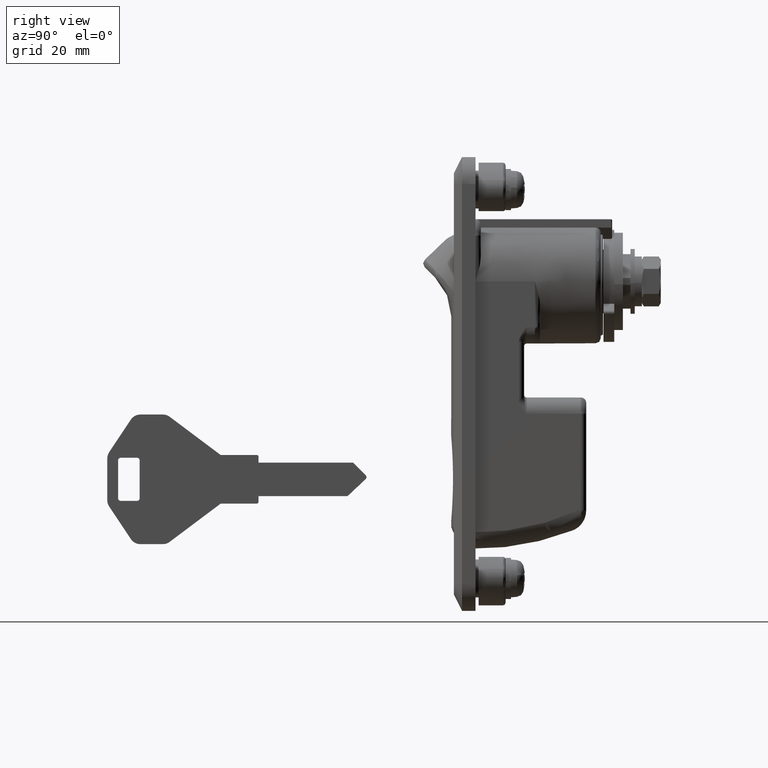
[diagram: clean part render]
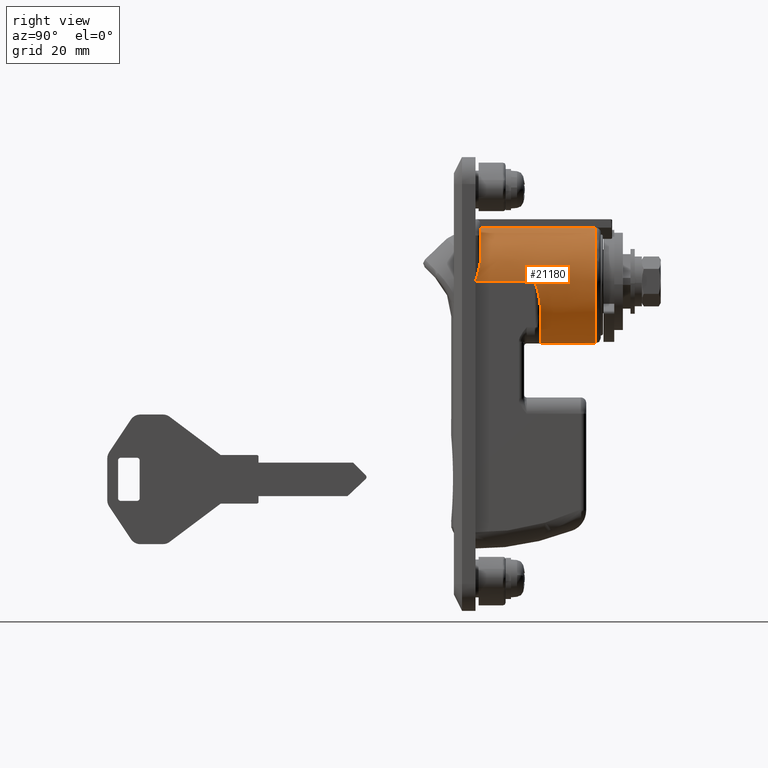
[diagram: same view with one face highlighted and labeled with its STEP entity id]
A machine part, right view. The second image highlights one B-rep face of the part: STEP entity #21180.
In plain terms, the highlighted face is a freeform B-spline surface patch.
Its self-contained STEP definition (entity closure, byte-faithful):
#16772=CARTESIAN_POINT('',(13.000000000000201,-4.690415759823431,-10.500000000000000));
#16773=VERTEX_POINT('',#16772);
#16827=CARTESIAN_POINT('',(13.000000000000201,0.0,-11.500000000000000));
#16828=VERTEX_POINT('',#16827);
#16851=CARTESIAN_POINT('',(13.000000000000201,-4.690415759823431,-10.500000000000000));
#16852=CARTESIAN_POINT('',(13.000000000000201,-3.954864853525151,-10.828575196481321));
#16853=CARTESIAN_POINT('',(13.000174019843881,-3.186823774540377,-11.078950807334220));
#16854=CARTESIAN_POINT('',(12.999990622497350,-2.398943505460169,-11.247002714370320));
#16855=CARTESIAN_POINT('',(12.999898917164630,-2.004974761726205,-11.331034770122150));
#16856=CARTESIAN_POINT('',(12.999078711932190,-1.606869004269427,-11.394307552557590));
#16857=CARTESIAN_POINT('',(12.998670436314381,-1.206260448506876,-11.436561359533149));
#16858=CARTESIAN_POINT('',(12.998466293812010,-1.005951565306311,-11.457688748762610));
#16859=CARTESIAN_POINT('',(12.998376992933810,-0.805124245083871,-11.473549798362590));
#16860=CARTESIAN_POINT('',(12.998554223316759,-0.603982209787287,-11.484128416656629));
#16861=CARTESIAN_POINT('',(12.998732986403731,-0.401100680371394,-11.494798519777730));
#16862=CARTESIAN_POINT('',(12.999283031665410,-0.203166349935086,-11.499915504493270));
#16863=CARTESIAN_POINT('',(13.000000000000201,0.0,-11.500000000000000));
#16864=B_SPLINE_CURVE_WITH_KNOTS('',3,(#16851,#16852,#16853,#16854,#16855,#16856,#16857,#16858,#16859,#16860,#16861,#16862,#16863),.UNSPECIFIED.,.F.,.U.,(4,3,3,3,4),(0.0,2.416810120694347,3.625302939285992,4.229563241183978,4.839049239640786),.UNSPECIFIED.);
#16865=EDGE_CURVE('',#16773,#16828,#16864,.T.);
#16949=CARTESIAN_POINT('',(12.000000000000201,-11.500000000000000,0.0));
#16950=VERTEX_POINT('',#16949);
#16951=CARTESIAN_POINT('',(13.000000000000201,-10.500000000000000,-4.690415759823530));
#16952=VERTEX_POINT('',#16951);
#16953=CARTESIAN_POINT('',(12.000000000000201,-11.500000000000000,5.259697E-016));
#16954=CARTESIAN_POINT('',(12.014552194124690,-11.500000000000000,-0.049349098591477));
#16955=CARTESIAN_POINT('',(12.029241510177840,-11.499679414453270,-0.099162776234242));
#16956=CARTESIAN_POINT('',(12.058470674062900,-11.498396303014880,-0.198349061517318));
#16957=CARTESIAN_POINT('',(12.102255003396570,-11.495510255699200,-0.347025155193488));
#16958=CARTESIAN_POINT('',(12.145781568037700,-11.489750047008510,-0.495413966688219));
#16959=CARTESIAN_POINT('',(12.232277269183950,-11.474411080987799,-0.791867987098536));
#16960=CARTESIAN_POINT('',(12.289201280699810,-11.459098346714111,-0.989072175396924));
#16961=CARTESIAN_POINT('',(12.455967405314830,-11.397842860974450,-1.579864825792282));
#16962=CARTESIAN_POINT('',(12.561962623284421,-11.336674203456230,-1.972601762261236));
#16963=CARTESIAN_POINT('',(12.680536602458210,-11.233388737136400,-2.463952355893630));
#16964=CARTESIAN_POINT('',(12.703542885086220,-11.211383167135780,-2.562246426042541));
#16965=CARTESIAN_POINT('',(12.747887405924100,-11.164607425251720,-2.758941881975324));
#16966=CARTESIAN_POINT('',(12.769239603087501,-11.139813386983310,-2.857420431964739));
#16967=CARTESIAN_POINT('',(12.830048187157320,-11.061589668240920,-3.151572512056969));
#16968=CARTESIAN_POINT('',(12.866392894893080,-11.004225205722030,-3.346413239475839));
#16969=CARTESIAN_POINT('',(12.928081584252309,-10.878872378748291,-3.733843825670114));
#16970=CARTESIAN_POINT('',(12.953453825861770,-10.810886542966070,-3.926430909640585));
#16971=CARTESIAN_POINT('',(12.989376017383030,-10.663889404401679,-4.309708842109340));
#16972=CARTESIAN_POINT('',(13.000000000000201,-10.584884630133500,-4.500392388327080));
#16973=CARTESIAN_POINT('',(13.000000000000201,-10.500000000000000,-4.690415759823530));
#16974=B_SPLINE_CURVE_WITH_KNOTS('',3,(#16953,#16954,#16955,#16956,#16957,#16958,#16959,#16960,#16961,#16962,#16963,#16964,#16965,#16966,#16967,#16968,#16969,#16970,#16971,#16972,#16973),.UNSPECIFIED.,.F.,.U.,(4,2,1,2,2,2,2,2,2,2,4),(0.0,0.031250000000000,0.062500000000000,0.125000000000000,0.250000000000000,0.500000000000001,0.562500000000001,0.625000000000001,0.750000000000001,0.875000000000000,1.0),.UNSPECIFIED.);
#16975=EDGE_CURVE('',#16950,#16952,#16974,.T.);
#17005=CARTESIAN_POINT('',(13.000000000000201,10.500000000000000,-4.690415759823431));
#17006=VERTEX_POINT('',#17005);
#17007=CARTESIAN_POINT('',(12.000000000000201,11.500000000000000,0.0));
#17008=VERTEX_POINT('',#17007);
#17009=CARTESIAN_POINT('',(13.000000000000201,10.500000000000000,-4.690415759823431));
#17010=CARTESIAN_POINT('',(13.000000000000201,10.584884630133489,-4.500392388326991));
#17011=CARTESIAN_POINT('',(12.989376017383030,10.663889404401710,-4.309708842109277));
#17012=CARTESIAN_POINT('',(12.953453825861761,10.810886542966090,-3.926430909640542));
#17013=CARTESIAN_POINT('',(12.928081584252309,10.878872378748300,-3.733843825670084));
#17014=CARTESIAN_POINT('',(12.866392894893080,11.004225205722040,-3.346413239475829));
#17015=CARTESIAN_POINT('',(12.830048187157320,11.061589668240920,-3.151572512056969));
#17016=CARTESIAN_POINT('',(12.769239603087509,11.139813386983301,-2.857420431964755));
#17017=CARTESIAN_POINT('',(12.747887405924100,11.164607425251720,-2.758941881975348));
#17018=CARTESIAN_POINT('',(12.703542885086220,11.211383167135770,-2.562246426042572));
#17019=CARTESIAN_POINT('',(12.680536602458210,11.233388737136391,-2.463952355893664));
#17020=CARTESIAN_POINT('',(12.561962623284440,11.336674203456230,-1.972601762261269));
#17021=CARTESIAN_POINT('',(12.455967405314830,11.397842860974450,-1.579864825792291));
#17022=CARTESIAN_POINT('',(12.289201280699800,11.459098346714111,-0.989072175396878));
#17023=CARTESIAN_POINT('',(12.232277269183930,11.474411080987810,-0.791867987098468));
#17024=CARTESIAN_POINT('',(12.145781568037680,11.489750047008510,-0.495413966688116));
#17025=CARTESIAN_POINT('',(12.102255003396539,11.495510255699200,-0.347025155193366));
#17026=CARTESIAN_POINT('',(12.058470674062860,11.498396303014870,-0.198349061517181));
#17027=CARTESIAN_POINT('',(12.029241510177810,11.499679414453279,-0.099162776234092));
#17028=CARTESIAN_POINT('',(12.014552194141190,11.500000000000000,-0.049349098586608));
#17029=CARTESIAN_POINT('',(12.000000000000201,11.500000000000000,5.259697E-016));
#17030=B_SPLINE_CURVE_WITH_KNOTS('',3,(#17009,#17010,#17011,#17012,#17013,#17014,#17015,#17016,#17017,#17018,#17019,#17020,#17021,#17022,#17023,#17024,#17025,#17026,#17027,#17028,#17029),.UNSPECIFIED.,.F.,.U.,(4,2,2,2,2,2,2,2,1,2,4),(0.0,0.125000000000000,0.250000000000000,0.375000000000000,0.437500000000000,0.499999999999999,0.750000000000000,0.875000000000000,0.937500000000000,0.968750000000000,1.0),.UNSPECIFIED.);
#17031=EDGE_CURVE('',#17006,#17008,#17030,.T.);
#17141=CARTESIAN_POINT('',(13.000000000000201,4.690415759823431,-10.500000000000000));
#17142=VERTEX_POINT('',#17141);
#17204=CARTESIAN_POINT('',(13.000000000000201,0.0,-11.500000000000000));
#17205=CARTESIAN_POINT('',(12.999283031665710,0.203166349928182,-11.499915504493950));
#17206=CARTESIAN_POINT('',(12.998732986403750,0.401100680384450,-11.494798519777151));
#17207=CARTESIAN_POINT('',(12.998554223317409,0.603982209793443,-11.484128416656310));
#17208=CARTESIAN_POINT('',(12.998376992937009,0.805124242920077,-11.473549798476290));
#17209=CARTESIAN_POINT('',(12.998466290639390,1.005951567471451,-11.457688748534251));
#17210=CARTESIAN_POINT('',(12.998670436315020,1.206260448507856,-11.436561359533041));
#17211=CARTESIAN_POINT('',(12.999078718283640,1.606869004300170,-11.394307552554309));
#17212=CARTESIAN_POINT('',(12.999898910370449,2.004974761691601,-11.331034770129509));
#17213=CARTESIAN_POINT('',(12.999990622497350,2.398943505459626,-11.247002714370440));
#17214=CARTESIAN_POINT('',(13.000174033431231,3.186823774534184,-11.078950807335580));
#17215=CARTESIAN_POINT('',(13.000000000000201,3.954864853527608,-10.828575196480219));
#17216=CARTESIAN_POINT('',(13.000000000000201,4.690415759823431,-10.500000000000000));
#17217=B_SPLINE_CURVE_WITH_KNOTS('',3,(#17204,#17205,#17206,#17207,#17208,#17209,#17210,#17211,#17212,#17213,#17214,#17215,#17216),.UNSPECIFIED.,.F.,.U.,(4,3,3,3,4),(0.0,0.609502897725691,1.213779947500761,2.422306274223309,4.839183406086599),.UNSPECIFIED.);
#17218=EDGE_CURVE('',#16828,#17142,#17217,.T.);
#17385=CARTESIAN_POINT('',(1.000000000000200,11.500000000000000,0.0));
#17386=VERTEX_POINT('',#17385);
#17387=CARTESIAN_POINT('',(2.000000000000200,10.500000000000000,4.690415759823431));
#17388=VERTEX_POINT('',#17387);
#17389=CARTESIAN_POINT('',(1.000000000000200,11.500000000000000,-1.051939E-015));
#17390=CARTESIAN_POINT('',(1.014552194141122,11.500000000000000,0.049349098586628));
#17391=CARTESIAN_POINT('',(1.029241510177801,11.499679414453270,0.099162776234093));
#17392=CARTESIAN_POINT('',(1.058470674062856,11.498396303014880,0.198349061517182));
#17393=CARTESIAN_POINT('',(1.102255003396543,11.495510255699200,0.347025155193366));
#17394=CARTESIAN_POINT('',(1.145781568037682,11.489750047008510,0.495413966688117));
#17395=CARTESIAN_POINT('',(1.232277269183931,11.474411080987810,0.791867987098469));
#17396=CARTESIAN_POINT('',(1.289201280699796,11.459098346714120,0.989072175396879));
#17397=CARTESIAN_POINT('',(1.455967405314828,11.397842860974450,1.579864825792291));
#17398=CARTESIAN_POINT('',(1.561962623284436,11.336674203456230,1.972601762261270));
#17399=CARTESIAN_POINT('',(1.680536602458213,11.233388737136391,2.463952355893666));
#17400=CARTESIAN_POINT('',(1.703542885086221,11.211383167135780,2.562246426042573));
#17401=CARTESIAN_POINT('',(1.747887405924098,11.164607425251710,2.758941881975348));
#17402=CARTESIAN_POINT('',(1.769239603087502,11.139813386983301,2.857420431964755));
#17403=CARTESIAN_POINT('',(1.830048187157319,11.061589668240920,3.151572512056971));
#17404=CARTESIAN_POINT('',(1.866392894893079,11.004225205722040,3.346413239475829));
#17405=CARTESIAN_POINT('',(1.928081584252305,10.878872378748300,3.733843825670084));
#17406=CARTESIAN_POINT('',(1.953453825861760,10.810886542966090,3.926430909640541));
#17407=CARTESIAN_POINT('',(1.989376017383028,10.663889404401710,4.309708842109277));
#17408=CARTESIAN_POINT('',(2.000000000000200,10.584884630133500,4.500392388326993));
#17409=CARTESIAN_POINT('',(2.000000000000200,10.500000000000000,4.690415759823431));
#17410=B_SPLINE_CURVE_WITH_KNOTS('',3,(#17389,#17390,#17391,#17392,#17393,#17394,#17395,#17396,#17397,#17398,#17399,#17400,#17401,#17402,#17403,#17404,#17405,#17406,#17407,#17408,#17409),.UNSPECIFIED.,.F.,.U.,(4,2,1,2,2,2,2,2,2,2,4),(0.0,0.031250000000000,0.062500000000000,0.125000000000000,0.250000000000000,0.499999999999999,0.562499999999999,0.624999999999999,0.750000000000000,0.875000000000000,1.0),.UNSPECIFIED.);
#17411=EDGE_CURVE('',#17386,#17388,#17410,.T.);
#17441=CARTESIAN_POINT('',(2.000000000000200,-10.500000000000000,4.690415759823431));
#17442=VERTEX_POINT('',#17441);
#17443=CARTESIAN_POINT('',(1.000000000000200,-11.500000000000000,0.0));
#17444=VERTEX_POINT('',#17443);
#17445=CARTESIAN_POINT('',(2.000000000000200,-10.500000000000000,4.690415759823431));
#17446=CARTESIAN_POINT('',(2.000000000000200,-10.584884630133500,4.500392388326993));
#17447=CARTESIAN_POINT('',(1.989376017383028,-10.663889404401710,4.309708842109277));
#17448=CARTESIAN_POINT('',(1.953453825861760,-10.810886542966090,3.926430909640541));
#17449=CARTESIAN_POINT('',(1.928081584252305,-10.878872378748300,3.733843825670084));
#17450=CARTESIAN_POINT('',(1.866392894893079,-11.004225205722040,3.346413239475829));
#17451=CARTESIAN_POINT('',(1.830048187157319,-11.061589668240920,3.151572512056971));
#17452=CARTESIAN_POINT('',(1.769239603087502,-11.139813386983301,2.857420431964755));
#17453=CARTESIAN_POINT('',(1.747887405924098,-11.164607425251710,2.758941881975348));
#17454=CARTESIAN_POINT('',(1.703542885086221,-11.211383167135780,2.562246426042573));
#17455=CARTESIAN_POINT('',(1.680536602458213,-11.233388737136391,2.463952355893666));
#17456=CARTESIAN_POINT('',(1.561962623284436,-11.336674203456230,1.972601762261270));
#17457=CARTESIAN_POINT('',(1.455967405314828,-11.397842860974450,1.579864825792291));
#17458=CARTESIAN_POINT('',(1.289201280699796,-11.459098346714120,0.989072175396879));
#17459=CARTESIAN_POINT('',(1.232277269183931,-11.474411080987810,0.791867987098469));
#17460=CARTESIAN_POINT('',(1.145781568037682,-11.489750047008510,0.495413966688117));
#17461=CARTESIAN_POINT('',(1.102255003396543,-11.495510255699200,0.347025155193366));
#17462=CARTESIAN_POINT('',(1.058470674062856,-11.498396303014880,0.198349061517182));
#17463=CARTESIAN_POINT('',(1.029241510177801,-11.499679414453270,0.099162776234093));
#17464=CARTESIAN_POINT('',(1.014552194141122,-11.500000000000000,0.049349098586628));
#17465=CARTESIAN_POINT('',(1.000000000000200,-11.500000000000000,-1.051939E-015));
#17466=B_SPLINE_CURVE_WITH_KNOTS('',3,(#17445,#17446,#17447,#17448,#17449,#17450,#17451,#17452,#17453,#17454,#17455,#17456,#17457,#17458,#17459,#17460,#17461,#17462,#17463,#17464,#17465),.UNSPECIFIED.,.F.,.U.,(4,2,2,2,2,2,2,2,1,2,4),(0.0,0.125000000000000,0.250000000000000,0.375000000000001,0.437500000000001,0.500000000000001,0.750000000000000,0.875000000000000,0.937500000000000,0.968750000000000,1.0),.UNSPECIFIED.);
#17467=EDGE_CURVE('',#17442,#17444,#17466,.T.);
#19419=CARTESIAN_POINT('',(2.000000000000225,5.750000000000000,9.959291999999811));
#19420=VERTEX_POINT('',#19419);
#19426=CARTESIAN_POINT('',(2.000000000000200,10.500000000000000,4.690415759823432));
#19427=CARTESIAN_POINT('',(2.000000000000200,8.979186426840000,8.094920463854423));
#19428=CARTESIAN_POINT('',(2.000000000000225,5.750000000000000,9.959291999999811));
#19436=(BOUNDED_CURVE()B_SPLINE_CURVE(2,(#19426,#19427,#19428),.UNSPECIFIED.,.F.,.U.)CURVE()GEOMETRIC_REPRESENTATION_ITEM()QUASI_UNIFORM_CURVE()RATIONAL_B_SPLINE_CURVE((1.0,0.951246761850770,1.0))REPRESENTATION_ITEM(''));
#19437=EDGE_CURVE('',#17388,#19420,#19436,.T.);
#19495=CARTESIAN_POINT('',(2.000000000000225,-5.750000000000000,9.959291999999811));
#19496=VERTEX_POINT('',#19495);
#19497=CARTESIAN_POINT('',(2.000000000000225,-5.750000000000000,9.959291999999811));
#19498=CARTESIAN_POINT('',(2.000000000000200,-8.979186426840000,8.094920463854422));
#19499=CARTESIAN_POINT('',(2.000000000000200,-10.500000000000000,4.690415759823434));
#19507=(BOUNDED_CURVE()B_SPLINE_CURVE(2,(#19497,#19498,#19499),.UNSPECIFIED.,.F.,.U.)CURVE()GEOMETRIC_REPRESENTATION_ITEM()QUASI_UNIFORM_CURVE()RATIONAL_B_SPLINE_CURVE((1.0,0.951246761850770,1.0))REPRESENTATION_ITEM(''));
#19508=EDGE_CURVE('',#19496,#17442,#19507,.T.);
#20277=CARTESIAN_POINT('',(13.000000000000201,-10.499999999999959,-4.690415759823514));
#20278=CARTESIAN_POINT('',(13.000000000000197,-8.706147487403369,-8.706147487403433));
#20279=CARTESIAN_POINT('',(13.000000000000201,-4.690415759823435,-10.500000000000000));
#20287=(BOUNDED_CURVE()B_SPLINE_CURVE(2,(#20277,#20278,#20279),.UNSPECIFIED.,.F.,.U.)CURVE()GEOMETRIC_REPRESENTATION_ITEM()QUASI_UNIFORM_CURVE()RATIONAL_B_SPLINE_CURVE((1.0,0.934021390679493,1.0))REPRESENTATION_ITEM(''));
#20288=EDGE_CURVE('',#16952,#16773,#20287,.T.);
#20301=CARTESIAN_POINT('',(13.000000000000201,4.690415759823430,-10.500000000000000));
#20302=CARTESIAN_POINT('',(13.000000000000194,8.706147487403415,-8.706147487403415));
#20303=CARTESIAN_POINT('',(13.000000000000201,10.500000000000000,-4.690415759823430));
#20311=(BOUNDED_CURVE()B_SPLINE_CURVE(2,(#20301,#20302,#20303),.UNSPECIFIED.,.F.,.U.)CURVE()GEOMETRIC_REPRESENTATION_ITEM()QUASI_UNIFORM_CURVE()RATIONAL_B_SPLINE_CURVE((1.0,0.934021390679491,1.0))REPRESENTATION_ITEM(''));
#20312=EDGE_CURVE('',#17142,#17006,#20311,.T.);
#20329=CARTESIAN_POINT('',(1.000000000000200,-11.500000000000000,0.0));
#20330=CARTESIAN_POINT('',(12.000000000000201,-11.500000000000000,0.0));
#20331=QUASI_UNIFORM_CURVE('',1,(#20329,#20330),.UNSPECIFIED.,.F.,.U.);
#20332=EDGE_CURVE('',#17444,#16950,#20331,.T.);
#20363=CARTESIAN_POINT('',(1.000000000000200,11.500000000000000,0.0));
#20364=CARTESIAN_POINT('',(12.000000000000201,11.500000000000000,0.0));
#20365=QUASI_UNIFORM_CURVE('',1,(#20363,#20364),.UNSPECIFIED.,.F.,.U.);
#20366=EDGE_CURVE('',#17386,#17008,#20365,.T.);
#20452=CARTESIAN_POINT('',(23.199999999999999,5.750000000000000,9.959291999999811));
#20453=VERTEX_POINT('',#20452);
#20459=CARTESIAN_POINT('',(23.199999999999999,5.750000000000000,9.959291999999811));
#20460=CARTESIAN_POINT('',(2.000000000000225,5.750000000000000,9.959291999999811));
#20461=QUASI_UNIFORM_CURVE('',1,(#20459,#20460),.UNSPECIFIED.,.F.,.U.);
#20462=EDGE_CURVE('',#20453,#19420,#20461,.T.);
#20474=CARTESIAN_POINT('',(23.199999999999999,-5.749998605715991,9.959292804989811));
#20475=VERTEX_POINT('',#20474);
#20489=CARTESIAN_POINT('',(23.199999999999999,-5.749998605715991,9.959292804989811));
#20490=CARTESIAN_POINT('',(2.000000000000225,-5.750000000000000,9.959291999999811));
#20491=QUASI_UNIFORM_CURVE('',1,(#20489,#20490),.UNSPECIFIED.,.F.,.U.);
#20492=EDGE_CURVE('',#20475,#19496,#20491,.T.);
#20967=CARTESIAN_POINT('',(23.199999999999999,5.750000000000000,9.959291999999811));
#20968=CARTESIAN_POINT('',(23.199999999999996,13.392033929723825,5.547161733456469));
#20969=CARTESIAN_POINT('',(23.199999999999999,11.108146888864370,-2.976419442117112));
#20970=CARTESIAN_POINT('',(23.199999999999996,8.824259848004918,-11.500000617690688));
#20971=CARTESIAN_POINT('',(23.199999999999999,-0.000000804990188,-11.499999999999970));
#20972=CARTESIAN_POINT('',(23.199999999999996,-8.824261457985305,-11.499999382309253));
#20973=CARTESIAN_POINT('',(23.199999999999999,-11.108147305557910,-2.976417886995463));
#20974=CARTESIAN_POINT('',(23.199999999999996,-13.392033153130512,5.547163608318320));
#20975=CARTESIAN_POINT('',(23.199999999999999,-5.749998605715991,9.959292804989811));
#20983=(BOUNDED_CURVE()B_SPLINE_CURVE(2,(#20967,#20968,#20969,#20970,#20971,#20972,#20973,#20974,#20975),.UNSPECIFIED.,.F.,.U.)B_SPLINE_CURVE_WITH_KNOTS((3,2,2,2,3),(0.0,0.250000000000000,0.500000000000000,0.750000000000000,1.0),.UNSPECIFIED.)CURVE()GEOMETRIC_REPRESENTATION_ITEM()RATIONAL_B_SPLINE_CURVE((1.0,0.793353330587716,1.0,0.793353330587716,1.0,0.793353330587716,1.0,0.793353330587716,1.0))REPRESENTATION_ITEM(''));
#20984=EDGE_CURVE('',#20453,#20475,#20983,.T.);
#21141=CARTESIAN_POINT('',(23.754999999999999,-5.310109052202886,10.200624581549549));
#21142=CARTESIAN_POINT('',(0.431125000000204,-5.310109052202886,10.200624581549549));
#21143=CARTESIAN_POINT('',(23.755000000000003,-17.832177317473711,3.682048437889898));
#21144=CARTESIAN_POINT('',(0.431125000000204,-17.832177317473711,3.682048437889898));
#21145=CARTESIAN_POINT('',(23.754999999999999,-8.916088658736857,-7.263151039978721));
#21146=CARTESIAN_POINT('',(0.431125000000204,-8.916088658736857,-7.263151039978721));
#21147=CARTESIAN_POINT('',(23.755000000000003,0.0,-18.208350517847339));
#21148=CARTESIAN_POINT('',(0.431125000000204,0.0,-18.208350517847339));
#21149=CARTESIAN_POINT('',(23.754999999999999,8.916088658736857,-7.263151039978721));
#21150=CARTESIAN_POINT('',(0.431125000000204,8.916088658736857,-7.263151039978721));
#21151=CARTESIAN_POINT('',(23.755000000000003,17.832177317473711,3.682048437889898));
#21152=CARTESIAN_POINT('',(0.431125000000204,17.832177317473711,3.682048437889898));
#21153=CARTESIAN_POINT('',(23.754999999999999,5.310109052202887,10.200624581549549));
#21154=CARTESIAN_POINT('',(0.431125000000204,5.310109052202887,10.200624581549549));
#21162=(BOUNDED_SURFACE()B_SPLINE_SURFACE(1,2,((#21141,#21143,#21145,#21147,#21149,#21151,#21153),(#21142,#21144,#21146,#21148,#21150,#21152,#21154)),.UNSPECIFIED.,.F.,.F.,.U.)B_SPLINE_SURFACE_WITH_KNOTS((2,2),(3,2,2,3),(0.0,23.323874999999791),(0.0,21.858805987758039,43.717611975516093,65.576417963274125),.UNSPECIFIED.)GEOMETRIC_REPRESENTATION_ITEM()RATIONAL_B_SPLINE_SURFACE(((1.0,0.631578351302498,1.0,0.631578351302498,1.0,0.631578351302498,1.0),(1.0,0.631578351302498,1.0,0.631578351302498,1.0,0.631578351302498,1.0)))REPRESENTATION_ITEM('')SURFACE());
#21163=ORIENTED_EDGE('',*,*,#20366,.F.);
#21164=ORIENTED_EDGE('',*,*,#17411,.T.);
#21165=ORIENTED_EDGE('',*,*,#19437,.T.);
#21166=ORIENTED_EDGE('',*,*,#20462,.F.);
#21167=ORIENTED_EDGE('',*,*,#20984,.T.);
#21168=ORIENTED_EDGE('',*,*,#20492,.T.);
#21169=ORIENTED_EDGE('',*,*,#19508,.T.);
#21170=ORIENTED_EDGE('',*,*,#17467,.T.);
#21171=ORIENTED_EDGE('',*,*,#20332,.T.);
#21172=ORIENTED_EDGE('',*,*,#16975,.T.);
#21173=ORIENTED_EDGE('',*,*,#20288,.T.);
#21174=ORIENTED_EDGE('',*,*,#16865,.T.);
#21175=ORIENTED_EDGE('',*,*,#17218,.T.);
#21176=ORIENTED_EDGE('',*,*,#20312,.T.);
#21177=ORIENTED_EDGE('',*,*,#17031,.T.);
#21178=EDGE_LOOP('',(#21163,#21164,#21165,#21166,#21167,#21168,#21169,#21170,#21171,#21172,#21173,#21174,#21175,#21176,#21177));
#21179=FACE_OUTER_BOUND('',#21178,.T.);
#21180=ADVANCED_FACE('',(#21179),#21162,.T.);